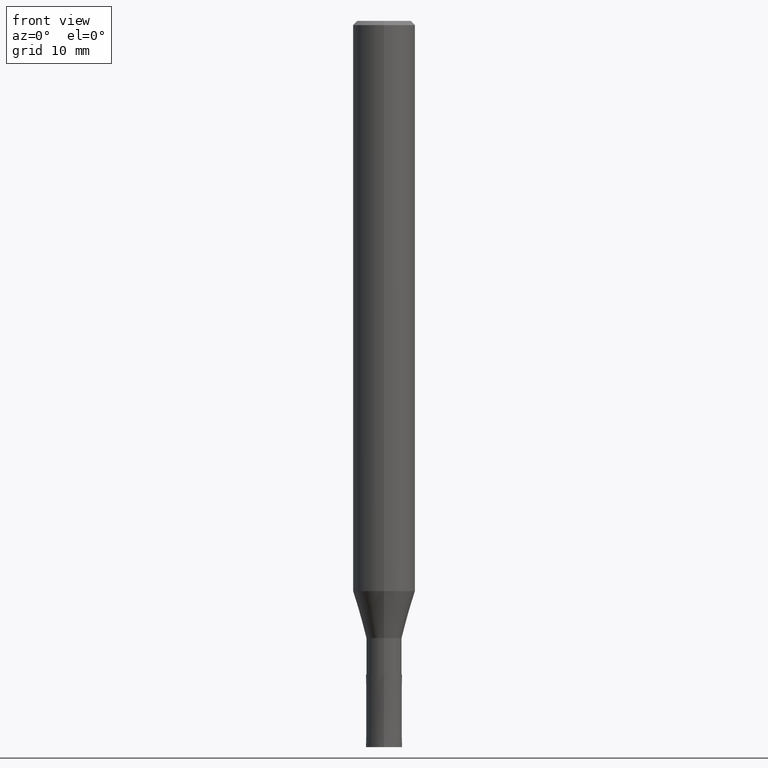
[diagram: clean part render]
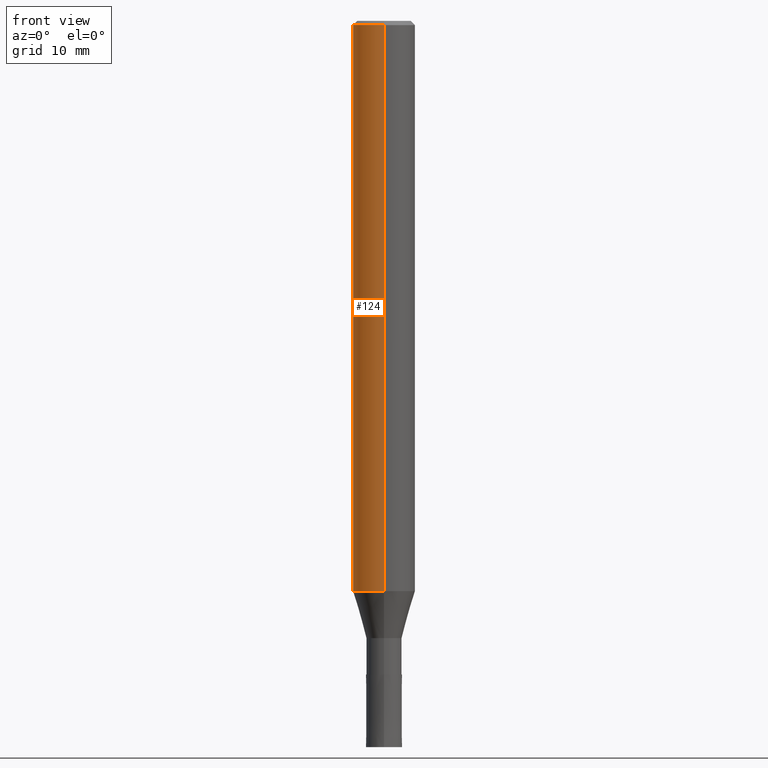
[diagram: same view with one face highlighted and labeled with its STEP entity id]
A machine part, front view. The second image highlights one B-rep face of the part: STEP entity #124.
In plain terms, the highlighted cylindrical surface (edge-blend (fillet) strip) has radius 3 mm, axis along (-0, -0, 1).
Its self-contained STEP definition (entity closure, byte-faithful):
#106=EDGE_CURVE('',#154,#136,#245,.T.);
#124=ADVANCED_FACE('',(#265),#266,.T.);
#128=VERTEX_POINT('',#270);
#132=EDGE_CURVE('',#154,#142,#274,.T.);
#136=VERTEX_POINT('',#278);
#142=VERTEX_POINT('',#284);
#154=VERTEX_POINT('',#298);
#156=EDGE_CURVE('',#142,#128,#300,.T.);
#178=EDGE_CURVE('',#128,#136,#325,.T.);
#245=CIRCLE('',#396,3.0);
#265=FACE_OUTER_BOUND('',#422,.T.);
#266=CYLINDRICAL_SURFACE('',#423,3.0);
#270=CARTESIAN_POINT('',(0.0,3.0,-0.399999999999999));
#274=LINE('',#434,#435);
#278=CARTESIAN_POINT('',(0.0,3.0,-54.966));
#284=CARTESIAN_POINT('',(3.67381906146713E-016,-3.0,-0.399999999999999));
#298=CARTESIAN_POINT('',(3.67381906146713E-016,-3.0,-54.966));
#300=CIRCLE('',#466,3.0);
#325=LINE('',#499,#500);
#396=AXIS2_PLACEMENT_3D('',#566,#567,#568);
#422=EDGE_LOOP('',(#592,#593,#594,#595));
#423=AXIS2_PLACEMENT_3D('',#596,#597,#598);
#434=CARTESIAN_POINT('',(3.67381906146713E-016,-3.0,-27.683));
#435=VECTOR('',#600,1.0);
#466=AXIS2_PLACEMENT_3D('',#624,#625,#626);
#499=CARTESIAN_POINT('',(-3.67381906146713E-016,3.0,-27.683));
#500=VECTOR('',#660,1.0);
#566=CARTESIAN_POINT('',(0.0,0.0,-54.966));
#567=DIRECTION('',(0.0,0.0,-1.0));
#568=DIRECTION('',(0.0,1.0,0.0));
#592=ORIENTED_EDGE('',*,*,#178,.T.);
#593=ORIENTED_EDGE('',*,*,#106,.F.);
#594=ORIENTED_EDGE('',*,*,#132,.T.);
#595=ORIENTED_EDGE('',*,*,#156,.T.);
#596=CARTESIAN_POINT('',(0.0,0.0,-27.683));
#597=DIRECTION('',(-0.0,-0.0,1.0));
#598=DIRECTION('',(0.0,1.0,0.0));
#600=DIRECTION('',(-0.0,-0.0,1.0));
#624=CARTESIAN_POINT('',(0.0,0.0,-0.399999999999999));
#625=DIRECTION('',(0.0,0.0,-1.0));
#626=DIRECTION('',(0.0,1.0,0.0));
#660=DIRECTION('',(0.0,0.0,-1.0));